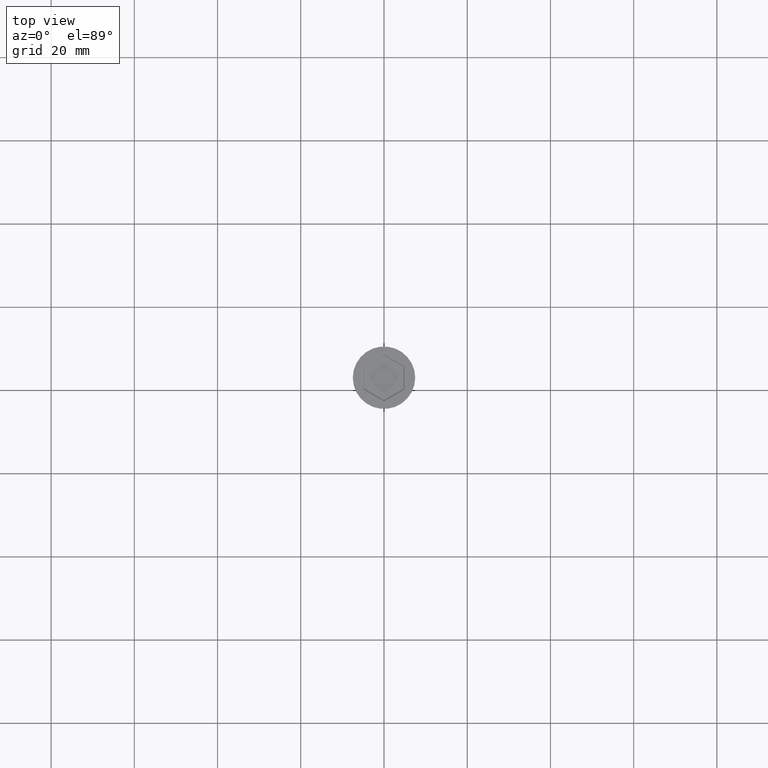
[diagram: clean part render]
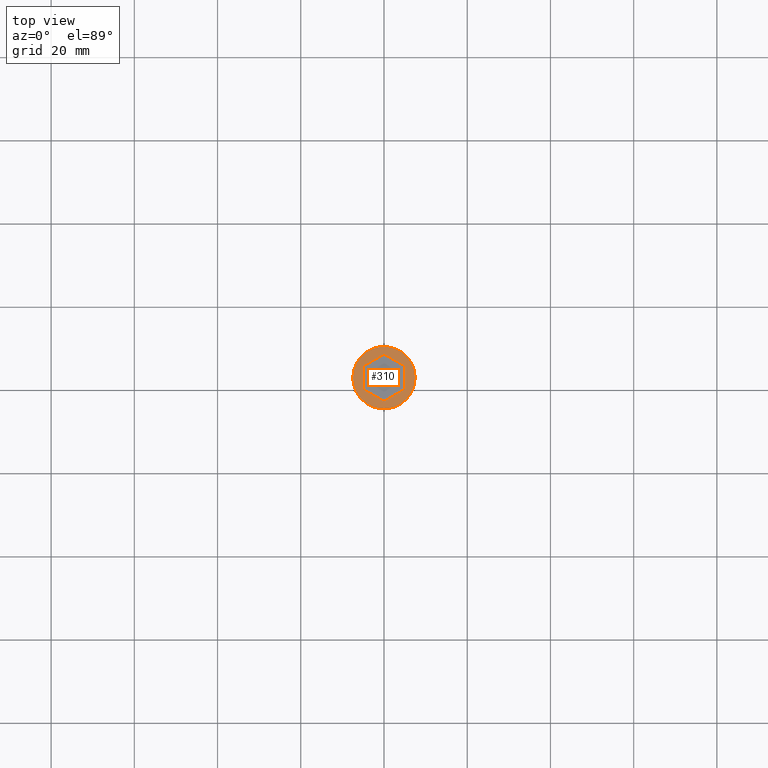
[diagram: same view with one face highlighted and labeled with its STEP entity id]
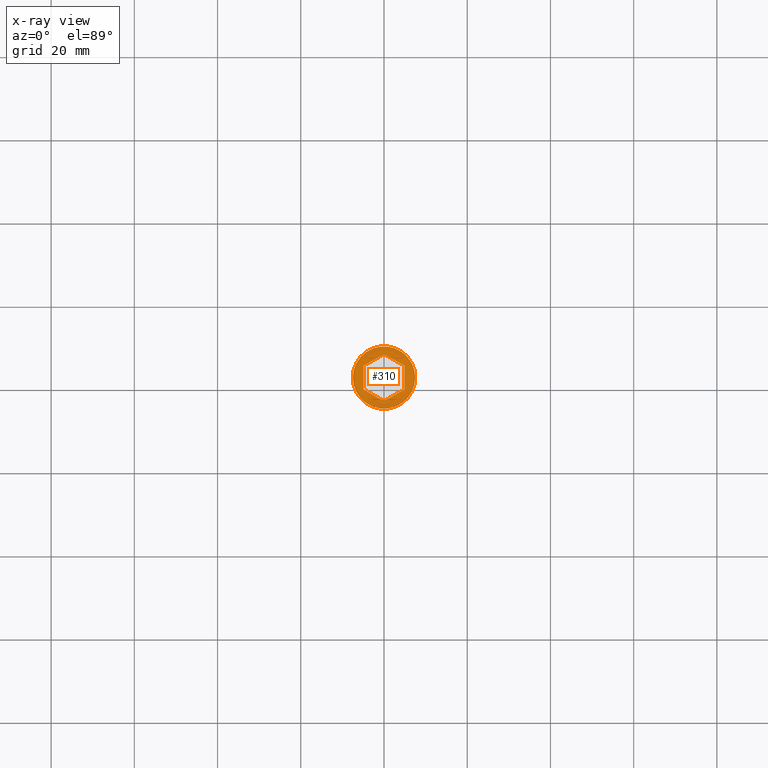
[diagram: x-ray of the same camera — body ghosted, the highlighted face saturated]
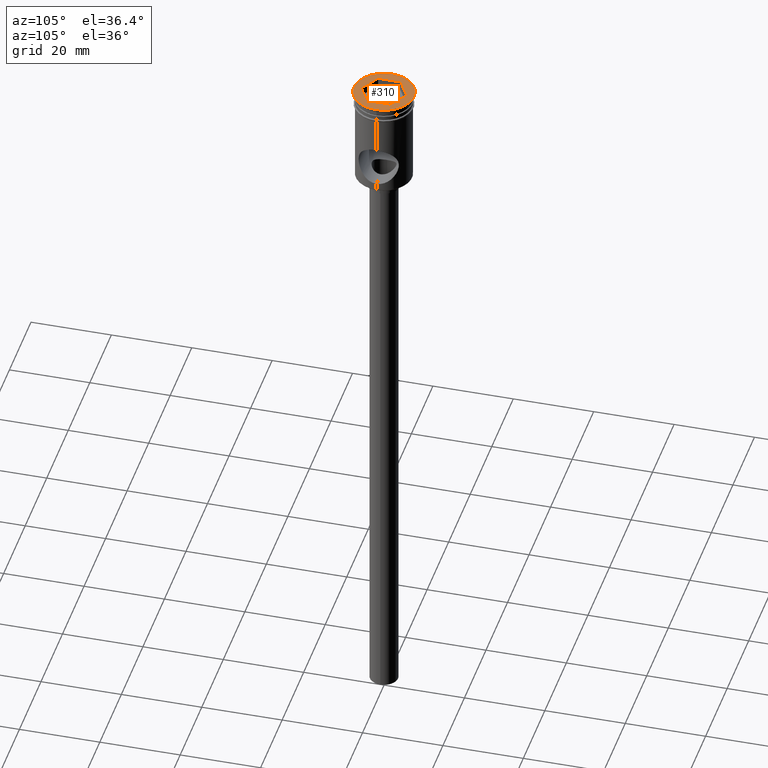
[diagram: same view with one face highlighted and labeled with its STEP entity id]
A machine part, top view. The second image highlights one B-rep face of the part: STEP entity #310.
The next image is the same camera in x-ray: the body ghosted, the highlighted face saturated — about 0% of this face is hidden behind the body in this view.
A second angle (auxiliary view) of the same face is appended — the face is thin or edge-on in the first view.
In plain terms, the highlighted planar face has unit normal (0, -0, 1).
Its self-contained STEP definition (entity closure, byte-faithful):
#30 = ORIENTED_EDGE ( 'NONE', *, *, #242, .T. ) ;
#40 = FACE_OUTER_BOUND ( 'NONE', #252, .T. ) ;
#56 = VECTOR ( 'NONE', #239, 1000.000000000000000 ) ;
#114 = VERTEX_POINT ( 'NONE', #637 ) ;
#152 = VERTEX_POINT ( 'NONE', #1076 ) ;
#170 = ORIENTED_EDGE ( 'NONE', *, *, #826, .T. ) ;
#193 = EDGE_CURVE ( 'NONE', #920, #1295, #391, .T. ) ;
#201 = VERTEX_POINT ( 'NONE', #511 ) ;
#229 = VECTOR ( 'NONE', #1309, 1000.000000000000000 ) ;
#230 = CARTESIAN_POINT ( 'NONE',  ( -4.899999999999994138, 2.713546265191240536, 0.000000000000000000 ) ) ;
#239 = DIRECTION ( 'NONE',  ( -1.598207019933148115E-16, -1.000000000000000000, 0.000000000000000000 ) ) ;
#242 = EDGE_CURVE ( 'NONE', #670, #201, #1437, .T. ) ;
#252 = EDGE_LOOP ( 'NONE', ( #170, #597 ) ) ;
#268 = DIRECTION ( 'NONE',  ( -0.8660254037844385966, 0.5000000000000002220, 0.000000000000000000 ) ) ;
#293 = CARTESIAN_POINT ( 'NONE',  ( 0.000000000000000000, 0.000000000000000000, 0.000000000000000000 ) ) ;
#310 = ADVANCED_FACE ( 'NONE', ( #1088, #40 ), #1429, .T. ) ;
#320 = LINE ( 'NONE', #544, #1110 ) ;
#337 = EDGE_CURVE ( 'NONE', #114, #670, #538, .T. ) ;
#350 = DIRECTION ( 'NONE',  ( 1.000000000000000000, 0.000000000000000000, 0.000000000000000000 ) ) ;
#373 = CARTESIAN_POINT ( 'NONE',  ( -7.500000000000000000, 9.184850993605147944E-16, 0.000000000000000000 ) ) ;
#382 = CARTESIAN_POINT ( 'NONE',  ( -7.915723921244255173E-16, 5.658032638058325681, 0.000000000000000000 ) ) ;
#391 = LINE ( 'NONE', #1403, #229 ) ;
#397 = ORIENTED_EDGE ( 'NONE', *, *, #1250, .T. ) ;
#452 = ORIENTED_EDGE ( 'NONE', *, *, #337, .T. ) ;
#483 = LINE ( 'NONE', #1052, #56 ) ;
#501 = LINE ( 'NONE', #230, #1176 ) ;
#511 = CARTESIAN_POINT ( 'NONE',  ( -4.899999999999994138, -2.829016319029162840, 0.000000000000000000 ) ) ;
#538 = LINE ( 'NONE', #1125, #1152 ) ;
#544 = CARTESIAN_POINT ( 'NONE',  ( 4.799999999999996270, 2.886751345948122882, 0.000000000000000000 ) ) ;
#550 = AXIS2_PLACEMENT_3D ( 'NONE', #1061, #1385, #350 ) ;
#557 = DIRECTION ( 'NONE',  ( -0.8660254037844387076, -0.4999999999999998890, 0.000000000000000000 ) ) ;
#570 = VERTEX_POINT ( 'NONE', #1338 ) ;
#585 = DIRECTION ( 'NONE',  ( 0.000000000000000000, 1.000000000000000000, 0.000000000000000000 ) ) ;
#597 = ORIENTED_EDGE ( 'NONE', *, *, #1319, .T. ) ;
#637 = CARTESIAN_POINT ( 'NONE',  ( 4.899999999999994138, -2.829016319029163729, 0.000000000000000000 ) ) ;
#670 = VERTEX_POINT ( 'NONE', #881 ) ;
#706 = ORIENTED_EDGE ( 'NONE', *, *, #1098, .T. ) ;
#737 = VERTEX_POINT ( 'NONE', #373 ) ;
#805 = EDGE_CURVE ( 'NONE', #152, #114, #483, .T. ) ;
#822 = EDGE_LOOP ( 'NONE', ( #30, #397, #1347, #706, #1108, #452 ) ) ;
#826 = EDGE_CURVE ( 'NONE', #570, #737, #1197, .T. ) ;
#850 = DIRECTION ( 'NONE',  ( -0.000000000000000000, -0.000000000000000000, 1.000000000000000000 ) ) ;
#852 = CARTESIAN_POINT ( 'NONE',  ( -4.899999999999994138, 2.829016319029163729, 0.000000000000000000 ) ) ;
#855 = CARTESIAN_POINT ( 'NONE',  ( 0.000000000000000000, 0.000000000000000000, 0.000000000000000000 ) ) ;
#881 = CARTESIAN_POINT ( 'NONE',  ( -3.203600579260160317E-16, -5.658032638058326569, 0.000000000000000000 ) ) ;
#920 = VERTEX_POINT ( 'NONE', #852 ) ;
#1007 = DIRECTION ( 'NONE',  ( 0.8660254037844385966, -0.5000000000000001110, 0.000000000000000000 ) ) ;
#1052 = CARTESIAN_POINT ( 'NONE',  ( 4.899999999999994138, -2.713546265191241869, 0.000000000000000000 ) ) ;
#1061 = CARTESIAN_POINT ( 'NONE',  ( 0.000000000000000000, 0.000000000000000000, 0.000000000000000000 ) ) ;
#1076 = CARTESIAN_POINT ( 'NONE',  ( 4.899999999999995026, 2.829016319029161508, 0.000000000000000000 ) ) ;
#1088 = FACE_BOUND ( 'NONE', #822, .T. ) ;
#1098 = EDGE_CURVE ( 'NONE', #1295, #152, #320, .T. ) ;
#1101 = CARTESIAN_POINT ( 'NONE',  ( -4.799999999999996270, -2.886751345948123770, 0.000000000000000000 ) ) ;
#1108 = ORIENTED_EDGE ( 'NONE', *, *, #805, .T. ) ;
#1110 = VECTOR ( 'NONE', #1007, 1000.000000000000114 ) ;
#1116 = DIRECTION ( 'NONE',  ( 1.000000000000000000, 0.000000000000000000, 0.000000000000000000 ) ) ;
#1125 = CARTESIAN_POINT ( 'NONE',  ( 0.09999999999999630018, -5.600297611139365195, 0.000000000000000000 ) ) ;
#1152 = VECTOR ( 'NONE', #557, 1000.000000000000000 ) ;
#1156 = CIRCLE ( 'NONE', #1341, 7.500000000000000000 ) ;
#1176 = VECTOR ( 'NONE', #585, 1000.000000000000000 ) ;
#1197 = CIRCLE ( 'NONE', #550, 7.500000000000000000 ) ;
#1250 = EDGE_CURVE ( 'NONE', #201, #920, #501, .T. ) ;
#1289 = AXIS2_PLACEMENT_3D ( 'NONE', #855, #1459, #1446 ) ;
#1295 = VERTEX_POINT ( 'NONE', #382 ) ;
#1309 = DIRECTION ( 'NONE',  ( 0.8660254037844387076, 0.4999999999999998890, 0.000000000000000000 ) ) ;
#1319 = EDGE_CURVE ( 'NONE', #737, #570, #1156, .T. ) ;
#1338 = CARTESIAN_POINT ( 'NONE',  ( 7.500000000000000000, 0.000000000000000000, 0.000000000000000000 ) ) ;
#1341 = AXIS2_PLACEMENT_3D ( 'NONE', #293, #850, #1116 ) ;
#1347 = ORIENTED_EDGE ( 'NONE', *, *, #193, .T. ) ;
#1385 = DIRECTION ( 'NONE',  ( -0.000000000000000000, -0.000000000000000000, 1.000000000000000000 ) ) ;
#1403 = CARTESIAN_POINT ( 'NONE',  ( -0.09999999999999770184, 5.600297611139364307, 0.000000000000000000 ) ) ;
#1429 = PLANE ( 'NONE',  #1289 ) ;
#1437 = LINE ( 'NONE', #1101, #1439 ) ;
#1439 = VECTOR ( 'NONE', #268, 999.9999999999998863 ) ;
#1446 = DIRECTION ( 'NONE',  ( 1.000000000000000000, 0.000000000000000000, 0.000000000000000000 ) ) ;
#1459 = DIRECTION ( 'NONE',  ( 0.000000000000000000, -0.000000000000000000, 1.000000000000000000 ) ) ;